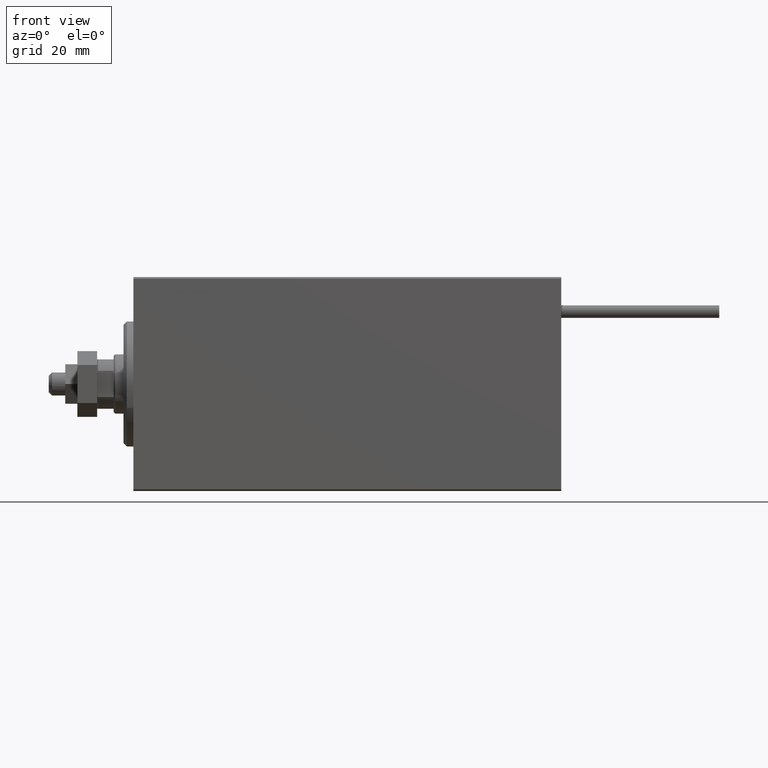
[diagram: clean part render]
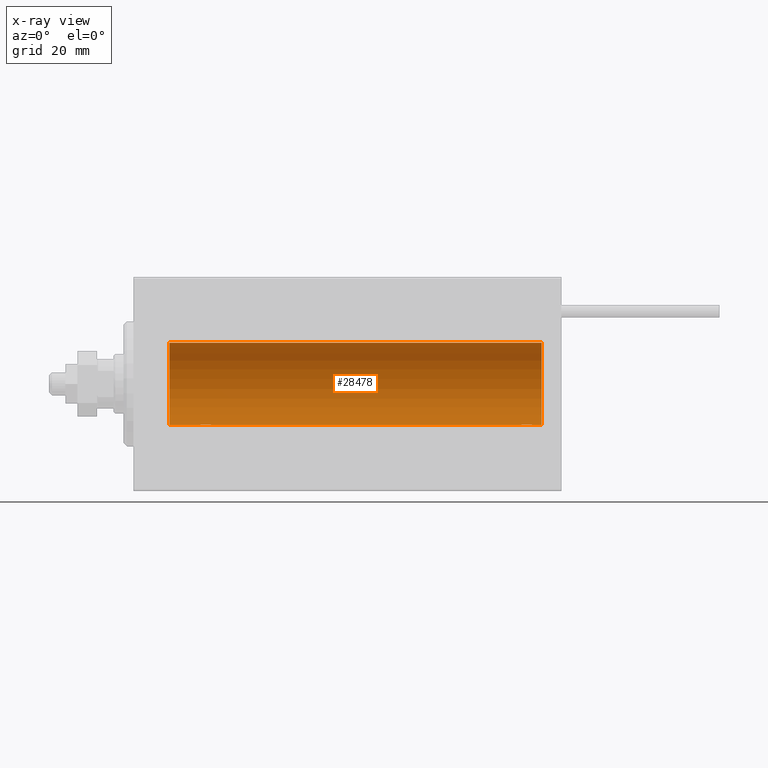
[diagram: x-ray — body ghosted, one internal face saturated and labeled with its STEP entity id]
A machine part, front view, then the same camera in x-ray: the body is ghosted and one INTERNAL B-rep face — a face not visible from any outside direction — is saturated and labeled: STEP entity #28478.
In plain terms, the highlighted cylindrical surface (partial cylindrical patch) has radius 12.5 mm, axis along (-1, -0, -0).
Its self-contained STEP definition (entity closure, byte-faithful):
#214 = VECTOR ( 'NONE', #28346, 1000.000000000000000 ) ;
#272 = CARTESIAN_POINT ( 'NONE',  ( 124.0000000000000000, 0.000000000000000000, 12.50000000000000000 ) ) ;
#386 = B_SPLINE_CURVE_WITH_KNOTS ( 'NONE', 3,
 ( #5888, #29294, #6385, #21913, #2059, #32863, #25986, #18347, #37433, #48382, #2565, #44560, #41508, #37173, #33863, #9698, #25235, #21414, #17598, #33111, #44816, #9953, #25487, #41003, #6132, #10964, #26487, #30555, #45571, #23180 ),
 .UNSPECIFIED., .F., .F.,
 ( 4, 2, 2, 2, 2, 2, 2, 2, 2, 2, 2, 2, 2, 2, 4 ),
 ( 1.846017744464648771E-18, 0.0003914362731607729158, 0.0007828725463215439884, 0.001174308819482315115, 0.001565745092643086242, 0.002348617638964598138, 0.003131490185286110901, 0.003522926458446867717, 0.003914362731607624532, 0.004305799004768380914, 0.004697235277929136428, 0.005088671551089892810, 0.005480107824250649191, 0.005871544097411406440, 0.006262980370572161955 ),
 .UNSPECIFIED. ) ;
#544 = DIRECTION ( 'NONE',  ( -1.000000000000000000, 0.000000000000000000, 0.000000000000000000 ) ) ;
#1180 = CARTESIAN_POINT ( 'NONE',  ( 19.99999999999999645, -3.966047509268588167E-15, -12.50000000000000000 ) ) ;
#2059 = CARTESIAN_POINT ( 'NONE',  ( 117.6025227029819717, 0.6455696738844808324, -12.48390768591463384 ) ) ;
#2127 = CARTESIAN_POINT ( 'NONE',  ( 19.99999999999999645, 0.1323736289504319763, -12.50000000000000000 ) ) ;
#2565 = CARTESIAN_POINT ( 'NONE',  ( 118.4931687955250226, 1.747608771958121920, -12.37764291807175709 ) ) ;
#2639 = CARTESIAN_POINT ( 'NONE',  ( 20.01301208516349206, 0.2624928479599882847, -12.49789934882883458 ) ) ;
#2888 = CARTESIAN_POINT ( 'NONE',  ( 20.99316879552500481, 1.747608771958139906, -12.37764291807175354 ) ) ;
#3174 = ORIENTED_EDGE ( 'NONE', *, *, #36339, .T. ) ;
#3733 = CARTESIAN_POINT ( 'NONE',  ( 124.0000000000000000, 1.530808498934191521E-15, -12.50000000000000000 ) ) ;
#4561 = ORIENTED_EDGE ( 'NONE', *, *, #21184, .F. ) ;
#5205 = CARTESIAN_POINT ( 'NONE',  ( 124.0000000000000000, 1.530808498934191521E-15, -12.50000000000000000 ) ) ;
#5888 = CARTESIAN_POINT ( 'NONE',  ( 117.5000000000000142, -1.169483437805093529E-14, -12.50000000000000000 ) ) ;
#5960 = CARTESIAN_POINT ( 'NONE',  ( 20.20300788371381273, 0.8876934327478117615, -12.46903010196599304 ) ) ;
#6132 = CARTESIAN_POINT ( 'NONE',  ( 121.2974249191616138, 0.8868029758979325550, -12.46909283808506430 ) ) ;
#6314 = AXIS2_PLACEMENT_3D ( 'NONE', #35402, #544, #42302 ) ;
#6385 = CARTESIAN_POINT ( 'NONE',  ( 117.5130120851634956, 0.2624928479599785702, -12.49789934882883458 ) ) ;
#6716 = CARTESIAN_POINT ( 'NONE',  ( 23.21980790594580313, 1.590288205413975309, -12.39864157855465088 ) ) ;
#6957 = CARTESIAN_POINT ( 'NONE',  ( 20.49398366327207910, 1.322451657002076120, -12.43019346654084956 ) ) ;
#7370 = AXIS2_PLACEMENT_3D ( 'NONE', #46945, #39547, #27599 ) ;
#7536 = CARTESIAN_POINT ( 'NONE',  ( 117.5000000000000142, -1.169483437805093529E-14, -12.50000000000000000 ) ) ;
#9698 = CARTESIAN_POINT ( 'NONE',  ( 120.0193735085155993, 1.935814255713557142, -12.34922241902463114 ) ) ;
#9953 = CARTESIAN_POINT ( 'NONE',  ( 121.0073355036432474, 1.321095788880528366, -12.43034574091278266 ) ) ;
#10025 = CARTESIAN_POINT ( 'NONE',  ( 22.26269462454597914, 1.986986967296540119, -12.34109209020652465 ) ) ;
#10271 = CARTESIAN_POINT ( 'NONE',  ( 23.00335814299181436, 1.734998657226765939, -12.37922086519035325 ) ) ;
#10528 = CARTESIAN_POINT ( 'NONE',  ( 22.51937350851555308, 1.935814255713574905, -12.34922241902463114 ) ) ;
#10785 = CARTESIAN_POINT ( 'NONE',  ( 21.73788193668374902, 1.999901172190678533, -12.33897869807161385 ) ) ;
#10964 = CARTESIAN_POINT ( 'NONE',  ( 121.3977303139366200, 0.6448065707252962353, -12.48394649977302606 ) ) ;
#11135 = VERTEX_POINT ( 'NONE', #24363 ) ;
#11337 = CIRCLE ( 'NONE', #19438, 12.50000000000000000 ) ;
#12640 = VERTEX_POINT ( 'NONE', #47173 ) ;
#14614 = CARTESIAN_POINT ( 'NONE',  ( 23.79742491916155700, 0.8868029758979399935, -12.46909283808506430 ) ) ;
#14853 = VERTEX_POINT ( 'NONE', #20210 ) ;
#15456 = VERTEX_POINT ( 'NONE', #1180 ) ;
#15783 = LINE ( 'NONE', #20591, #36604 ) ;
#16177 = EDGE_CURVE ( 'NONE', #36681, #23887, #386, .T. ) ;
#16297 = LINE ( 'NONE', #272, #32715 ) ;
#16513 = EDGE_CURVE ( 'NONE', #38405, #11135, #40429, .T. ) ;
#17598 = CARTESIAN_POINT ( 'NONE',  ( 120.5033581429918570, 1.734998657226752616, -12.37922086519036036 ) ) ;
#17723 = DIRECTION ( 'NONE',  ( 0.000000000000000000, 0.000000000000000000, 1.000000000000000000 ) ) ;
#18179 = CARTESIAN_POINT ( 'NONE',  ( 22.88656313533016373, 1.797558627508998086, -12.37018026341338839 ) ) ;
#18347 = CARTESIAN_POINT ( 'NONE',  ( 117.9096331999059828, 1.219754986802265462, -12.44082361696003680 ) ) ;
#18419 = CARTESIAN_POINT ( 'NONE',  ( 23.32102833500698225, 1.507394620545640773, -12.40913174964213184 ) ) ;
#19438 = AXIS2_PLACEMENT_3D ( 'NONE', #21286, #40625, #17723 ) ;
#20210 = CARTESIAN_POINT ( 'NONE',  ( 10.99999999999999645, 0.000000000000000000, 12.50000000000000000 ) ) ;
#20591 = CARTESIAN_POINT ( 'NONE',  ( 124.0000000000000000, 1.530808498934191521E-15, -12.50000000000000000 ) ) ;
#21184 = EDGE_CURVE ( 'NONE', #15456, #12640, #38837, .T. ) ;
#21286 = CARTESIAN_POINT ( 'NONE',  ( 10.99999999999999645, 0.000000000000000000, 0.000000000000000000 ) ) ;
#21414 = CARTESIAN_POINT ( 'NONE',  ( 120.3865631353301922, 1.797558627508983875, -12.37018026341339194 ) ) ;
#21913 = CARTESIAN_POINT ( 'NONE',  ( 117.5639564822263878, 0.5184196815545927262, -12.48990118705761887 ) ) ;
#21986 = CARTESIAN_POINT ( 'NONE',  ( 20.26446744561862801, 1.002494658017155871, -12.46021263690096958 ) ) ;
#22244 = CARTESIAN_POINT ( 'NONE',  ( 24.00000000000000000, 1.530808426277417854E-15, -12.50000000000000000 ) ) ;
#22491 = CARTESIAN_POINT ( 'NONE',  ( 24.00000000000000711, 0.1306394121199392910, -12.50000000000000533 ) ) ;
#22920 = ORIENTED_EDGE ( 'NONE', *, *, #43356, .T. ) ;
#23164 = CARTESIAN_POINT ( 'NONE',  ( 24.00000000000000000, 1.530808426277417854E-15, -12.50000000000000000 ) ) ;
#23180 = CARTESIAN_POINT ( 'NONE',  ( 121.5000000000000284, 1.530808426268740384E-15, -12.50000000000000000 ) ) ;
#23214 = VERTEX_POINT ( 'NONE', #23164 ) ;
#23791 = FACE_OUTER_BOUND ( 'NONE', #35522, .T. ) ;
#23887 = VERTEX_POINT ( 'NONE', #36420 ) ;
#24363 = CARTESIAN_POINT ( 'NONE',  ( 124.0000000000000000, 1.530808498934191521E-15, -12.50000000000000000 ) ) ;
#25235 = CARTESIAN_POINT ( 'NONE',  ( 120.1441523377029768, 1.897967064543075066, -12.35517291625592406 ) ) ;
#25487 = CARTESIAN_POINT ( 'NONE',  ( 121.0899140868063313, 1.220297236145710729, -12.44076681548080998 ) ) ;
#25542 = ORIENTED_EDGE ( 'NONE', *, *, #16513, .F. ) ;
#25560 = CARTESIAN_POINT ( 'NONE',  ( 23.98690384766256400, 0.2633501011236120681, -12.49788564268284041 ) ) ;
#25986 = CARTESIAN_POINT ( 'NONE',  ( 117.7644674456187062, 1.002494658017142104, -12.46021263690097669 ) ) ;
#26487 = CARTESIAN_POINT ( 'NONE',  ( 121.4356177452185506, 0.5201193324741325563, -12.48983485452575337 ) ) ;
#27599 = DIRECTION ( 'NONE',  ( 0.000000000000000000, 0.000000000000000000, 1.000000000000000000 ) ) ;
#28038 = EDGE_CURVE ( 'NONE', #11135, #23887, #15783, .T. ) ;
#28346 = DIRECTION ( 'NONE',  ( -1.000000000000000000, -0.000000000000000000, -0.000000000000000000 ) ) ;
#28478 = ADVANCED_FACE ( 'NONE', ( #23791 ), #46703, .F. ) ;
#28794 = ORIENTED_EDGE ( 'NONE', *, *, #28038, .F. ) ;
#29294 = CARTESIAN_POINT ( 'NONE',  ( 117.5000000000000142, 0.1323736289504215957, -12.50000000000000178 ) ) ;
#29367 = CARTESIAN_POINT ( 'NONE',  ( 20.40963319990594016, 1.219754986802279451, -12.44082361696003503 ) ) ;
#30377 = CARTESIAN_POINT ( 'NONE',  ( 20.10252270298193622, 0.6455696738844897142, -12.48390768591463207 ) ) ;
#30555 = CARTESIAN_POINT ( 'NONE',  ( 121.4869038476625889, 0.2633501011236119016, -12.49788564268284041 ) ) ;
#32306 = B_SPLINE_CURVE_WITH_KNOTS ( 'NONE', 3,
 ( #41583, #2127, #2639, #45394, #30377, #5960, #21986, #29367, #6957, #37247, #2888, #45645, #10785, #41833, #10025, #10528, #37757, #18179, #10271, #6716, #18419, #33942, #37506, #38007, #14614, #33689, #33185, #25560, #22491, #22244 ),
 .UNSPECIFIED., .F., .F.,
 ( 4, 2, 2, 2, 2, 2, 2, 2, 2, 2, 2, 2, 2, 2, 4 ),
 ( 3.611342868676865251E-19, 0.0003914362731607586585, 0.0007828725463215168833, 0.001174308819482275217, 0.001565745092643033550, 0.002348617638964549999, 0.003131490185286066666, 0.003522926458446830420, 0.003914362731607594174, 0.004305799004768357495, 0.004697235277929121683, 0.005088671551089885003, 0.005480107824250649191, 0.005871544097411412512, 0.006262980370572176700 ),
 .UNSPECIFIED. ) ;
#32715 = VECTOR ( 'NONE', #35879, 1000.000000000000000 ) ;
#32863 = CARTESIAN_POINT ( 'NONE',  ( 117.7030078837138518, 0.8876934327478018805, -12.46903010196599659 ) ) ;
#33111 = CARTESIAN_POINT ( 'NONE',  ( 120.7198079059458138, 1.590288205413961986, -12.39864157855465265 ) ) ;
#33185 = CARTESIAN_POINT ( 'NONE',  ( 23.93561774521849728, 0.5201193324741352209, -12.48983485452574982 ) ) ;
#33689 = CARTESIAN_POINT ( 'NONE',  ( 23.89773031393658087, 0.6448065707253023415, -12.48394649977302073 ) ) ;
#33863 = CARTESIAN_POINT ( 'NONE',  ( 119.7626946245460147, 1.986986967296522799, -12.34109209020653175 ) ) ;
#33942 = CARTESIAN_POINT ( 'NONE',  ( 23.50733550364322255, 1.321095788880538136, -12.43034574091277911 ) ) ;
#35003 = EDGE_CURVE ( 'NONE', #36681, #23214, #47943, .T. ) ;
#35402 = CARTESIAN_POINT ( 'NONE',  ( 124.0000000000000000, 0.000000000000000000, 0.000000000000000000 ) ) ;
#35522 = EDGE_LOOP ( 'NONE', ( #28794, #25542, #3174, #22920, #4561, #39405, #42115, #40474 ) ) ;
#35862 = DIRECTION ( 'NONE',  ( -1.000000000000000000, -0.000000000000000000, -0.000000000000000000 ) ) ;
#35879 = DIRECTION ( 'NONE',  ( -1.000000000000000000, -0.000000000000000000, -0.000000000000000000 ) ) ;
#36339 = EDGE_CURVE ( 'NONE', #38405, #14853, #16297, .T. ) ;
#36420 = CARTESIAN_POINT ( 'NONE',  ( 121.5000000000000284, 1.530808426268740384E-15, -12.50000000000000000 ) ) ;
#36604 = VECTOR ( 'NONE', #35862, 1000.000000000000000 ) ;
#36681 = VERTEX_POINT ( 'NONE', #7536 ) ;
#37173 = CARTESIAN_POINT ( 'NONE',  ( 119.6299262936026793, 2.000049200055385334, -12.33895470450623399 ) ) ;
#37247 = CARTESIAN_POINT ( 'NONE',  ( 20.77033506126850426, 1.598680238462369951, -12.39873273758732175 ) ) ;
#37433 = CARTESIAN_POINT ( 'NONE',  ( 117.9939836632721324, 1.322451657002056358, -12.43019346654085311 ) ) ;
#37506 = CARTESIAN_POINT ( 'NONE',  ( 23.58991408680628155, 1.220297236145721609, -12.44076681548080288 ) ) ;
#37757 = CARTESIAN_POINT ( 'NONE',  ( 22.64415233770293412, 1.897967064543090165, -12.35517291625592051 ) ) ;
#38007 = CARTESIAN_POINT ( 'NONE',  ( 23.73470742397611843, 1.003863686549172352, -12.46009879577771606 ) ) ;
#38405 = VERTEX_POINT ( 'NONE', #48603 ) ;
#38837 = LINE ( 'NONE', #3733, #39658 ) ;
#39341 = DIRECTION ( 'NONE',  ( -1.000000000000000000, -0.000000000000000000, -0.000000000000000000 ) ) ;
#39405 = ORIENTED_EDGE ( 'NONE', *, *, #49097, .T. ) ;
#39547 = DIRECTION ( 'NONE',  ( -1.000000000000000000, -0.000000000000000000, -0.000000000000000000 ) ) ;
#39658 = VECTOR ( 'NONE', #39341, 1000.000000000000000 ) ;
#40429 = CIRCLE ( 'NONE', #6314, 12.50000000000000000 ) ;
#40474 = ORIENTED_EDGE ( 'NONE', *, *, #16177, .T. ) ;
#40625 = DIRECTION ( 'NONE',  ( -1.000000000000000000, 0.000000000000000000, 0.000000000000000000 ) ) ;
#41003 = CARTESIAN_POINT ( 'NONE',  ( 121.2347074239761611, 1.003863686549161915, -12.46009879577771606 ) ) ;
#41508 = CARTESIAN_POINT ( 'NONE',  ( 119.2378819366838059, 1.999901172190663212, -12.33897869807161563 ) ) ;
#41583 = CARTESIAN_POINT ( 'NONE',  ( 19.99999999999999645, -3.966047509268588167E-15, -12.50000000000000000 ) ) ;
#41833 = CARTESIAN_POINT ( 'NONE',  ( 22.12992629360264729, 2.000049200055402210, -12.33895470450623044 ) ) ;
#42115 = ORIENTED_EDGE ( 'NONE', *, *, #35003, .F. ) ;
#42302 = DIRECTION ( 'NONE',  ( 0.000000000000000000, 0.000000000000000000, 1.000000000000000000 ) ) ;
#43356 = EDGE_CURVE ( 'NONE', #14853, #12640, #11337, .T. ) ;
#44560 = CARTESIAN_POINT ( 'NONE',  ( 118.9743641282951074, 1.947190906025027424, -12.34781876294798941 ) ) ;
#44816 = CARTESIAN_POINT ( 'NONE',  ( 120.8210283350070142, 1.507394620545629671, -12.40913174964213361 ) ) ;
#45394 = CARTESIAN_POINT ( 'NONE',  ( 20.06395648222636652, 0.5184196815546032733, -12.48990118705761532 ) ) ;
#45571 = CARTESIAN_POINT ( 'NONE',  ( 121.5000000000000284, 0.1306394121199379310, -12.50000000000000178 ) ) ;
#45645 = CARTESIAN_POINT ( 'NONE',  ( 21.47436412829510033, 1.947190906025044077, -12.34781876294798053 ) ) ;
#46703 = CYLINDRICAL_SURFACE ( 'NONE', #7370, 12.50000000000000000 ) ;
#46945 = CARTESIAN_POINT ( 'NONE',  ( 124.0000000000000000, 0.000000000000000000, 0.000000000000000000 ) ) ;
#47173 = CARTESIAN_POINT ( 'NONE',  ( 10.99999999999999645, 1.530808498934191521E-15, -12.50000000000000000 ) ) ;
#47943 = LINE ( 'NONE', #5205, #214 ) ;
#48382 = CARTESIAN_POINT ( 'NONE',  ( 118.2703350612685398, 1.598680238462349301, -12.39873273758732353 ) ) ;
#48603 = CARTESIAN_POINT ( 'NONE',  ( 124.0000000000000000, 0.000000000000000000, 12.50000000000000000 ) ) ;
#49097 = EDGE_CURVE ( 'NONE', #15456, #23214, #32306, .T. ) ;